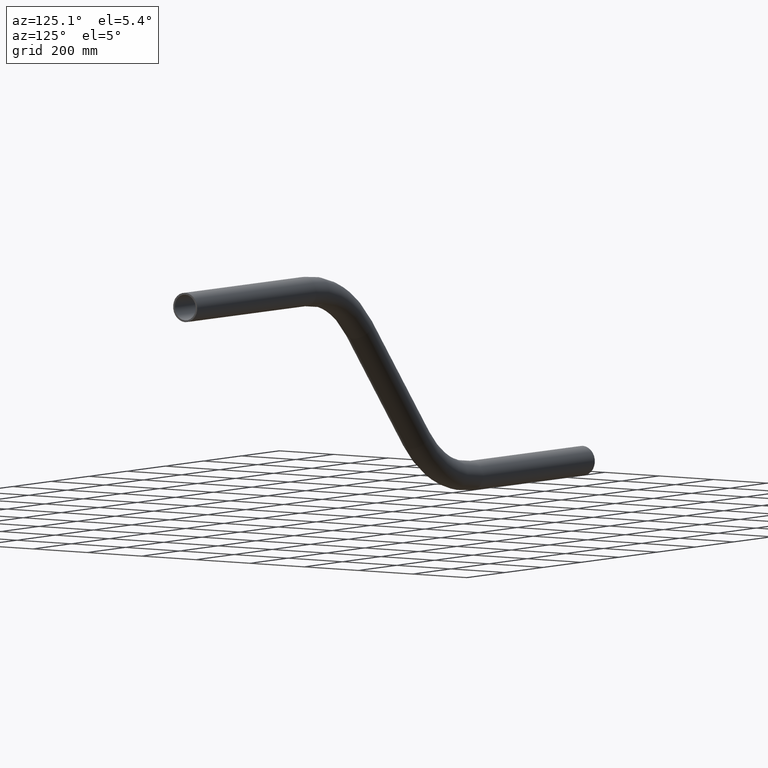
[diagram: clean part render]
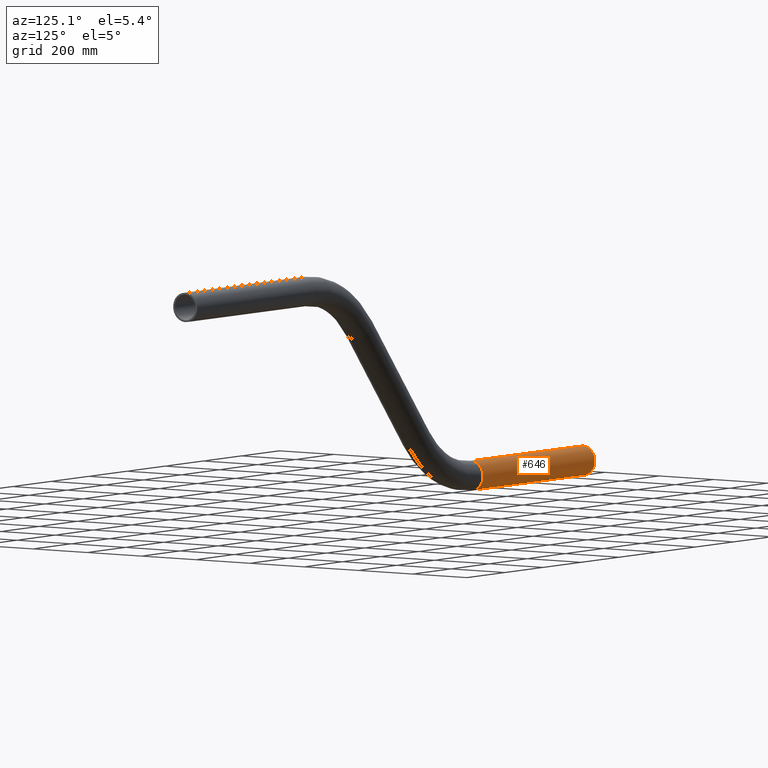
[diagram: same view with one face highlighted and labeled with its STEP entity id]
A machine part, auxiliary view. The second image highlights one B-rep face of the part: STEP entity #646.
In plain terms, the highlighted cylindrical surface (edge-blend (fillet) strip) has radius 44.45 mm, axis along (-1, -0, -0).
Its self-contained STEP definition (entity closure, byte-faithful):
#14 = CARTESIAN_POINT ( 'NONE',  ( 586.7355748789869949, 5.443555022209986486E-15, -44.45000000000000995 ) ) ;
#23 = DIRECTION ( 'NONE',  ( 0.000000000000000000, 0.000000000000000000, 1.000000000000000000 ) ) ;
#55 = CARTESIAN_POINT ( 'NONE',  ( 586.7355748789869949, 5.443555022209986486E-15, -44.45000000000000995 ) ) ;
#58 = VECTOR ( 'NONE', #218, 1000.000000000000000 ) ;
#78 = AXIS2_PLACEMENT_3D ( 'NONE', #172, #168, #231 ) ;
#93 = VERTEX_POINT ( 'NONE', #108 ) ;
#98 = ORIENTED_EDGE ( 'NONE', *, *, #247, .F. ) ;
#108 = CARTESIAN_POINT ( 'NONE',  ( 0.000000000000000000, 0.000000000000000000, 44.45000000000000995 ) ) ;
#124 = CARTESIAN_POINT ( 'NONE',  ( 0.000000000000000000, 5.443555022209986486E-15, -44.45000000000000995 ) ) ;
#134 = CIRCLE ( 'NONE', #511, 44.45000000000000995 ) ;
#168 = DIRECTION ( 'NONE',  ( 1.000000000000000000, 0.000000000000000000, 0.000000000000000000 ) ) ;
#172 = CARTESIAN_POINT ( 'NONE',  ( 586.7355748789869949, 0.000000000000000000, 0.000000000000000000 ) ) ;
#194 = ORIENTED_EDGE ( 'NONE', *, *, #460, .F. ) ;
#218 = DIRECTION ( 'NONE',  ( -1.000000000000000000, -0.000000000000000000, -0.000000000000000000 ) ) ;
#231 = DIRECTION ( 'NONE',  ( 0.000000000000000000, 0.000000000000000000, -1.000000000000000000 ) ) ;
#233 = ORIENTED_EDGE ( 'NONE', *, *, #328, .T. ) ;
#235 = CARTESIAN_POINT ( 'NONE',  ( 586.7355748789869949, 0.000000000000000000, 0.000000000000000000 ) ) ;
#236 = LINE ( 'NONE', #435, #577 ) ;
#244 = CARTESIAN_POINT ( 'NONE',  ( 586.7355748789869949, 0.000000000000000000, 44.45000000000000995 ) ) ;
#247 = EDGE_CURVE ( 'NONE', #486, #394, #571, .T. ) ;
#290 = DIRECTION ( 'NONE',  ( 0.000000000000000000, 0.000000000000000000, -1.000000000000000000 ) ) ;
#294 = CARTESIAN_POINT ( 'NONE',  ( 0.000000000000000000, 0.000000000000000000, 0.000000000000000000 ) ) ;
#321 = VERTEX_POINT ( 'NONE', #124 ) ;
#328 = EDGE_CURVE ( 'NONE', #486, #321, #418, .T. ) ;
#394 = VERTEX_POINT ( 'NONE', #244 ) ;
#418 = LINE ( 'NONE', #14, #58 ) ;
#435 = CARTESIAN_POINT ( 'NONE',  ( 586.7355748789869949, 0.000000000000000000, 44.45000000000000995 ) ) ;
#445 = ORIENTED_EDGE ( 'NONE', *, *, #632, .T. ) ;
#460 = EDGE_CURVE ( 'NONE', #394, #93, #236, .T. ) ;
#477 = FACE_OUTER_BOUND ( 'NONE', #630, .T. ) ;
#486 = VERTEX_POINT ( 'NONE', #55 ) ;
#511 = AXIS2_PLACEMENT_3D ( 'NONE', #294, #588, #290 ) ;
#566 = AXIS2_PLACEMENT_3D ( 'NONE', #235, #628, #23 ) ;
#571 = CIRCLE ( 'NONE', #78, 44.45000000000000995 ) ;
#577 = VECTOR ( 'NONE', #635, 1000.000000000000000 ) ;
#588 = DIRECTION ( 'NONE',  ( 1.000000000000000000, 0.000000000000000000, 0.000000000000000000 ) ) ;
#623 = CYLINDRICAL_SURFACE ( 'NONE', #566, 44.45000000000000995 ) ;
#628 = DIRECTION ( 'NONE',  ( -1.000000000000000000, -0.000000000000000000, -0.000000000000000000 ) ) ;
#630 = EDGE_LOOP ( 'NONE', ( #98, #233, #445, #194 ) ) ;
#632 = EDGE_CURVE ( 'NONE', #321, #93, #134, .T. ) ;
#635 = DIRECTION ( 'NONE',  ( -1.000000000000000000, -0.000000000000000000, -0.000000000000000000 ) ) ;
#646 = ADVANCED_FACE ( 'NONE', ( #477 ), #623, .T. ) ;